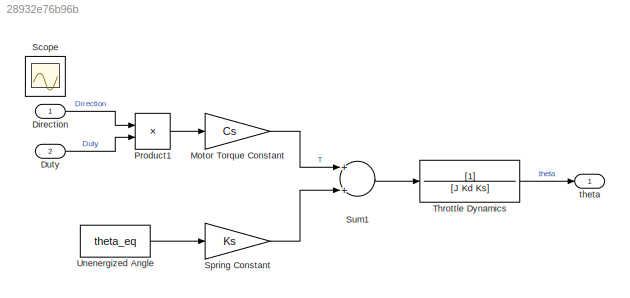
MODEL slx_28932e76b96b
KIND model
CONFIG AbsTol = auto
CONFIG EnableMultiTasking = on
CONFIG FixedStep = auto
CONFIG MaxStep = auto
CONFIG MinStep = auto
CONFIG PreLoadFcn = etc_plant_data;
CONFIG RelTol = 1e-3
CONFIG SampleTimeConstraint = Unconstrained
CONFIG Solver = VariableStepAuto
CONFIG SolverName = VariableStepAuto
CONFIG StartTime = 0.0
CONFIG StopTime = 20
BLOCK [Inport] Direction
  IconDisplay = Port number
BLOCK [Inport] Duty
  IconDisplay = Port number
  Port = 2
BLOCK [Gain] Motor Torque Constant
  Gain = Cs
BLOCK [Product] Product1
  InputSameDT = off
  Ports = [2, 1]
  RndMeth = Floor
BLOCK [Scope] Scope
  Floating = off
  IOType = viewer
  NumInputPorts = 1
  Ports = []
  ScopeSpecificationString = Simulink.scopes.TimeScopeBlockCfg('CurrentConfiguration', extmgr.ConfigurationSet(extmgr.Configuration('Core','General UI',true),extmgr.Configuration('Core','Source UI',true),extmgr.Configuration('Sources','WiredSimulink',true,'DataLoggingMaxPoints','7500','DataLoggingLimitDataPoints',true,'DataLoggingSaveFormat','Array','DataLoggingDecimation','1','DataLoggingDecimateData',true),extmgr.Configurat...<+1825ch>
BLOCK [Gain] Spring Constant
  Gain = Ks
BLOCK [Sum] Sum1
  InputSameDT = off
  OutDataTypeStr = Inherit: Inherit via internal rule
  Ports = [2, 1]
BLOCK [TransferFcn] Throttle Dynamics
  Denominator = [J Kd Ks]
BLOCK [Constant] Unenergized Angle
  Value = theta_eq
BLOCK [Outport] theta
  IconDisplay = Port number
LINE Direction:1 -> Product1:1
LINE Duty:1 -> Product1:2
LINE Motor Torque Constant:1 -> Sum1:1
LINE Product1:1 -> Motor Torque Constant:1
LINE Spring Constant:1 -> Sum1:2
LINE Sum1:1 -> Throttle Dynamics:1
LINE Throttle Dynamics:1 -> theta:1
LINE Unenergized Angle:1 -> Spring Constant:1
